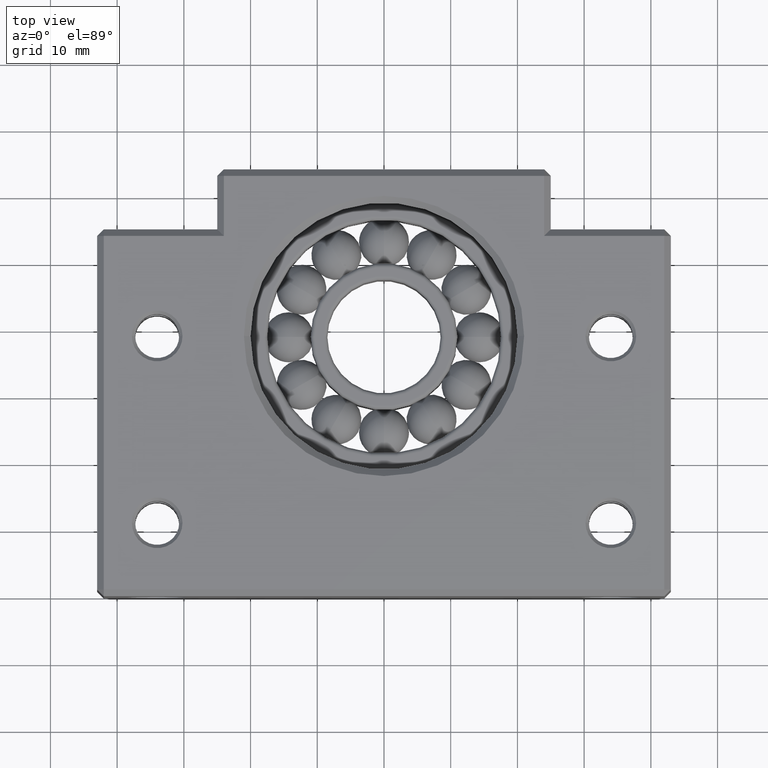
[diagram: clean part render]
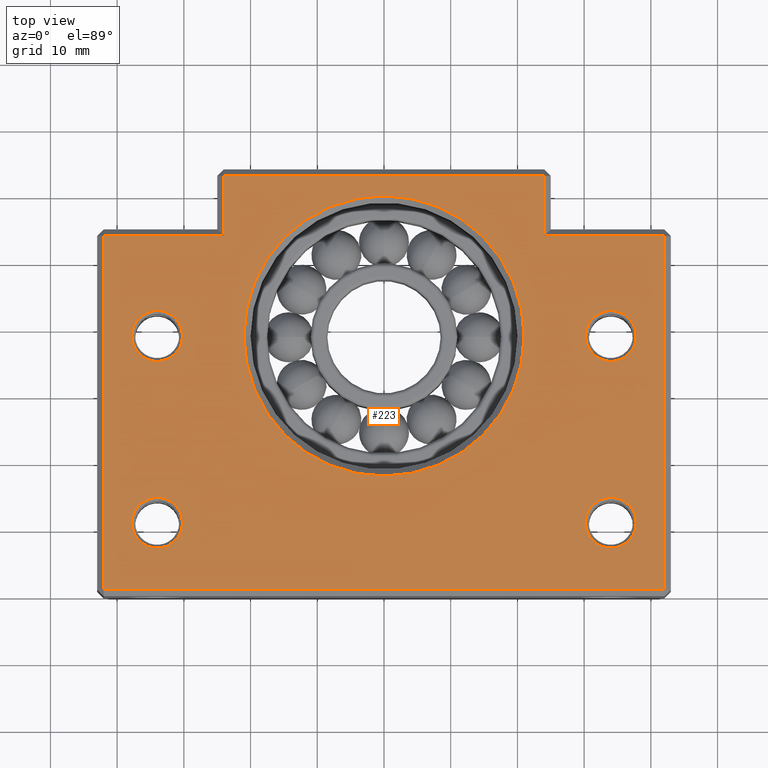
[diagram: same view with one face highlighted and labeled with its STEP entity id]
A machine part, top view. The second image highlights one B-rep face of the part: STEP entity #223.
In plain terms, the highlighted planar face has unit normal (-0, 0, 1).
Its self-contained STEP definition (entity closure, byte-faithful):
#1 = DIRECTION ( 'NONE',  ( -1.000000000000000000, 0.0000000000000000000, -0.0000000000000000000 ) ) ;
#8 = ORIENTED_EDGE ( 'NONE', *, *, #260, .T. ) ;
#223 = ADVANCED_FACE ( 'NONE', ( #906, #976, #975, #974, #973, #972 ), #908, .T. ) ;
#224 = EDGE_LOOP ( 'NONE', ( #225, #226 ) ) ;
#225 = ORIENTED_EDGE ( 'NONE', *, *, #3623, .T. ) ;
#226 = ORIENTED_EDGE ( 'NONE', *, *, #227, .T. ) ;
#227 = EDGE_CURVE ( 'NONE', #3624, #3503, #951, .T. ) ;
#228 = EDGE_LOOP ( 'NONE', ( #229, #288 ) ) ;
#229 = ORIENTED_EDGE ( 'NONE', *, *, #3708, .T. ) ;
#260 = EDGE_CURVE ( 'NONE', #286, #287, #1080, .T. ) ;
#261 = ORIENTED_EDGE ( 'NONE', *, *, #262, .T. ) ;
#262 = EDGE_CURVE ( 'NONE', #287, #263, #1114, .T. ) ;
#263 = VERTEX_POINT ( 'NONE', #1110 ) ;
#264 = ORIENTED_EDGE ( 'NONE', *, *, #265, .T. ) ;
#265 = EDGE_CURVE ( 'NONE', #263, #266, #1109, .T. ) ;
#266 = VERTEX_POINT ( 'NONE', #1105 ) ;
#267 = ORIENTED_EDGE ( 'NONE', *, *, #268, .T. ) ;
#268 = EDGE_CURVE ( 'NONE', #266, #276, #1104, .T. ) ;
#272 = ORIENTED_EDGE ( 'NONE', *, *, #273, .T. ) ;
#273 = EDGE_CURVE ( 'NONE', #4615, #4634, #1088, .T. ) ;
#274 = ORIENTED_EDGE ( 'NONE', *, *, #275, .T. ) ;
#275 = EDGE_CURVE ( 'NONE', #276, #277, #1083, .T. ) ;
#276 = VERTEX_POINT ( 'NONE', #1148 ) ;
#277 = VERTEX_POINT ( 'NONE', #1147 ) ;
#278 = ORIENTED_EDGE ( 'NONE', *, *, #279, .T. ) ;
#279 = EDGE_CURVE ( 'NONE', #277, #280, #1146, .T. ) ;
#280 = VERTEX_POINT ( 'NONE', #1142 ) ;
#281 = ORIENTED_EDGE ( 'NONE', *, *, #282, .T. ) ;
#282 = EDGE_CURVE ( 'NONE', #280, #283, #1141, .T. ) ;
#283 = VERTEX_POINT ( 'NONE', #1137 ) ;
#284 = ORIENTED_EDGE ( 'NONE', *, *, #285, .T. ) ;
#285 = EDGE_CURVE ( 'NONE', #283, #286, #1136, .T. ) ;
#286 = VERTEX_POINT ( 'NONE', #1132 ) ;
#287 = VERTEX_POINT ( 'NONE', #1131 ) ;
#288 = ORIENTED_EDGE ( 'NONE', *, *, #289, .T. ) ;
#289 = EDGE_CURVE ( 'NONE', #2316, #2401, #1130, .T. ) ;
#290 = EDGE_LOOP ( 'NONE', ( #291, #292 ) ) ;
#291 = ORIENTED_EDGE ( 'NONE', *, *, #4802, .T. ) ;
#292 = ORIENTED_EDGE ( 'NONE', *, *, #293, .T. ) ;
#293 = EDGE_CURVE ( 'NONE', #2471, #4794, #1125, .T. ) ;
#294 = EDGE_LOOP ( 'NONE', ( #295, #297 ) ) ;
#295 = ORIENTED_EDGE ( 'NONE', *, *, #3163, .T. ) ;
#297 = ORIENTED_EDGE ( 'NONE', *, *, #298, .T. ) ;
#298 = EDGE_CURVE ( 'NONE', #3364, #2997, #1119, .T. ) ;
#299 = EDGE_LOOP ( 'NONE', ( #300, #272 ) ) ;
#300 = ORIENTED_EDGE ( 'NONE', *, *, #4628, .T. ) ;
#301 = EDGE_LOOP ( 'NONE', ( #274, #278, #281, #284, #8, #261, #264, #267 ) ) ;
#809 = VECTOR ( 'NONE', #1, 1000.000000000000000 ) ;
#810 = CARTESIAN_POINT ( 'NONE',  ( -24.99999999999998900, 63.00000000000001400, 11.50000000000000000 ) ) ;
#906 = FACE_BOUND ( 'NONE', #224, .T. ) ;
#908 = PLANE ( 'NONE',  #971 ) ;
#944 = DIRECTION ( 'NONE',  ( 1.000000000000000000, 0.0000000000000000000, 0.0000000000000000000 ) ) ;
#945 = DIRECTION ( 'NONE',  ( 0.0000000000000000000, -0.0000000000000000000, -1.000000000000000000 ) ) ;
#946 = CARTESIAN_POINT ( 'NONE',  ( 34.00000000000001400, 11.00000000000001400, 11.50000000000000000 ) ) ;
#947 = AXIS2_PLACEMENT_3D ( 'NONE', #946, #945, #944 ) ;
#948 = DIRECTION ( 'NONE',  ( 1.000000000000000000, 0.0000000000000000000, 0.0000000000000000000 ) ) ;
#949 = DIRECTION ( 'NONE',  ( -0.0000000000000000000, 0.0000000000000000000, 1.000000000000000000 ) ) ;
#950 = CARTESIAN_POINT ( 'NONE',  ( -42.99999999999998600, 0.0000000000000000000, 11.50000000000000000 ) ) ;
#951 = CIRCLE ( 'NONE', #947, 3.799999999999983800 ) ;
#971 = AXIS2_PLACEMENT_3D ( 'NONE', #950, #949, #948 ) ;
#972 = FACE_OUTER_BOUND ( 'NONE', #301, .T. ) ;
#973 = FACE_BOUND ( 'NONE', #299, .T. ) ;
#974 = FACE_BOUND ( 'NONE', #294, .T. ) ;
#975 = FACE_BOUND ( 'NONE', #290, .T. ) ;
#976 = FACE_BOUND ( 'NONE', #228, .T. ) ;
#1059 = DIRECTION ( 'NONE',  ( 1.000000000000000000, 1.224646799147353200E-016, 0.0000000000000000000 ) ) ;
#1060 = VECTOR ( 'NONE', #1059, 1000.000000000000000 ) ;
#1061 = CARTESIAN_POINT ( 'NONE',  ( 43.00000000000000700, 0.9999999999999976700, 11.50000000000000000 ) ) ;
#1080 = LINE ( 'NONE', #1061, #1060 ) ;
#1083 = LINE ( 'NONE', #810, #809 ) ;
#1085 = DIRECTION ( 'NONE',  ( 1.000000000000000000, 0.0000000000000000000, 0.0000000000000000000 ) ) ;
#1086 = DIRECTION ( 'NONE',  ( 0.0000000000000000000, -0.0000000000000000000, -1.000000000000000000 ) ) ;
#1087 = AXIS2_PLACEMENT_3D ( 'NONE', #1092, #1086, #1085 ) ;
#1088 = CIRCLE ( 'NONE', #1087, 21.00000000000000400 ) ;
#1092 = CARTESIAN_POINT ( 'NONE',  ( 1.234791104884921900E-014, 39.00000000000000700, 11.50000000000000000 ) ) ;
#1101 = DIRECTION ( 'NONE',  ( 0.0000000000000000000, 1.000000000000000000, 0.0000000000000000000 ) ) ;
#1102 = VECTOR ( 'NONE', #1101, 1000.000000000000000 ) ;
#1103 = CARTESIAN_POINT ( 'NONE',  ( 24.00000000000002100, 64.00000000000000000, 11.50000000000000000 ) ) ;
#1104 = LINE ( 'NONE', #1103, #1102 ) ;
#1105 = CARTESIAN_POINT ( 'NONE',  ( 24.00000000000002100, 54.00000000000002800, 11.50000000000000000 ) ) ;
#1106 = DIRECTION ( 'NONE',  ( -1.000000000000000000, 0.0000000000000000000, -0.0000000000000000000 ) ) ;
#1107 = VECTOR ( 'NONE', #1106, 1000.000000000000000 ) ;
#1108 = CARTESIAN_POINT ( 'NONE',  ( 25.00000000000001100, 54.00000000000002800, 11.50000000000000000 ) ) ;
#1109 = LINE ( 'NONE', #1108, #1107 ) ;
#1110 = CARTESIAN_POINT ( 'NONE',  ( 42.00000000000003600, 54.00000000000002800, 11.50000000000000000 ) ) ;
#1111 = DIRECTION ( 'NONE',  ( 2.523234146875356000E-016, 1.000000000000000000, 0.0000000000000000000 ) ) ;
#1112 = VECTOR ( 'NONE', #1111, 1000.000000000000000 ) ;
#1113 = CARTESIAN_POINT ( 'NONE',  ( 42.00000000000003600, 55.00000000000001400, 11.50000000000000000 ) ) ;
#1114 = LINE ( 'NONE', #1113, #1112 ) ;
#1118 = CARTESIAN_POINT ( 'NONE',  ( -34.00000000000000000, 39.00000000000000700, 11.50000000000000000 ) ) ;
#1119 = CIRCLE ( 'NONE', #1181, 3.799999999999983800 ) ;
#1121 = DIRECTION ( 'NONE',  ( 1.000000000000000000, 0.0000000000000000000, 0.0000000000000000000 ) ) ;
#1122 = DIRECTION ( 'NONE',  ( 0.0000000000000000000, -0.0000000000000000000, -1.000000000000000000 ) ) ;
#1123 = CARTESIAN_POINT ( 'NONE',  ( -34.00000000000000000, 11.00000000000000700, 11.50000000000000000 ) ) ;
#1124 = AXIS2_PLACEMENT_3D ( 'NONE', #1123, #1122, #1121 ) ;
#1125 = CIRCLE ( 'NONE', #1124, 3.799999999999983800 ) ;
#1126 = DIRECTION ( 'NONE',  ( 1.000000000000000000, 0.0000000000000000000, 0.0000000000000000000 ) ) ;
#1127 = DIRECTION ( 'NONE',  ( 0.0000000000000000000, -0.0000000000000000000, -1.000000000000000000 ) ) ;
#1128 = CARTESIAN_POINT ( 'NONE',  ( 34.00000000000000000, 39.00000000000001400, 11.50000000000000000 ) ) ;
#1129 = AXIS2_PLACEMENT_3D ( 'NONE', #1128, #1127, #1126 ) ;
#1130 = CIRCLE ( 'NONE', #1129, 3.799999999999983800 ) ;
#1131 = CARTESIAN_POINT ( 'NONE',  ( 42.00000000000002100, 0.9999999999999974500, 11.50000000000000000 ) ) ;
#1132 = CARTESIAN_POINT ( 'NONE',  ( -41.99999999999999300, 0.9999999999999872300, 11.50000000000000000 ) ) ;
#1133 = DIRECTION ( 'NONE',  ( 5.046468293750712000E-016, -1.000000000000000000, 0.0000000000000000000 ) ) ;
#1134 = VECTOR ( 'NONE', #1133, 1000.000000000000000 ) ;
#1135 = CARTESIAN_POINT ( 'NONE',  ( -41.99999999999999300, 5.046468293750646900E-016, 11.50000000000000000 ) ) ;
#1136 = LINE ( 'NONE', #1135, #1134 ) ;
#1137 = CARTESIAN_POINT ( 'NONE',  ( -42.00000000000002100, 54.00000000000001400, 11.50000000000000000 ) ) ;
#1138 = DIRECTION ( 'NONE',  ( -1.000000000000000000, -3.854941057726233700E-016, 0.0000000000000000000 ) ) ;
#1139 = VECTOR ( 'NONE', #1138, 1000.000000000000000 ) ;
#1140 = CARTESIAN_POINT ( 'NONE',  ( -43.00000000000000700, 54.00000000000001400, 11.50000000000000000 ) ) ;
#1141 = LINE ( 'NONE', #1140, #1139 ) ;
#1142 = CARTESIAN_POINT ( 'NONE',  ( -23.99999999999998900, 54.00000000000002100, 11.50000000000000000 ) ) ;
#1143 = DIRECTION ( 'NONE',  ( 0.0000000000000000000, -1.000000000000000000, 0.0000000000000000000 ) ) ;
#1144 = VECTOR ( 'NONE', #1143, 1000.000000000000000 ) ;
#1145 = CARTESIAN_POINT ( 'NONE',  ( -23.99999999999998900, 55.00000000000000700, 11.50000000000000000 ) ) ;
#1146 = LINE ( 'NONE', #1145, #1144 ) ;
#1147 = CARTESIAN_POINT ( 'NONE',  ( -23.99999999999998900, 63.00000000000001400, 11.50000000000000000 ) ) ;
#1148 = CARTESIAN_POINT ( 'NONE',  ( 24.00000000000002100, 63.00000000000001400, 11.50000000000000000 ) ) ;
#1179 = DIRECTION ( 'NONE',  ( 1.000000000000000000, 0.0000000000000000000, 0.0000000000000000000 ) ) ;
#1180 = DIRECTION ( 'NONE',  ( 0.0000000000000000000, -0.0000000000000000000, -1.000000000000000000 ) ) ;
#1181 = AXIS2_PLACEMENT_3D ( 'NONE', #1118, #1180, #1179 ) ;
#1223 = CARTESIAN_POINT ( 'NONE',  ( -37.79999999999998300, 11.00000000000000700, 11.50000000000000000 ) ) ;
#1224 = CARTESIAN_POINT ( 'NONE',  ( 37.79999999999998300, 39.00000000000001400, 11.50000000000000000 ) ) ;
#1225 = CARTESIAN_POINT ( 'NONE',  ( 30.20000000000001700, 39.00000000000001400, 11.50000000000000000 ) ) ;
#1259 = CARTESIAN_POINT ( 'NONE',  ( -30.20000000000001700, 39.00000000000000700, 11.50000000000000000 ) ) ;
#1298 = CARTESIAN_POINT ( 'NONE',  ( -37.79999999999998300, 39.00000000000000700, 11.50000000000000000 ) ) ;
#1310 = DIRECTION ( 'NONE',  ( 1.000000000000000000, 0.0000000000000000000, 0.0000000000000000000 ) ) ;
#1311 = DIRECTION ( 'NONE',  ( 0.0000000000000000000, -0.0000000000000000000, -1.000000000000000000 ) ) ;
#1312 = CARTESIAN_POINT ( 'NONE',  ( -34.00000000000000000, 39.00000000000000700, 11.50000000000000000 ) ) ;
#1313 = AXIS2_PLACEMENT_3D ( 'NONE', #1312, #1311, #1310 ) ;
#1314 = CIRCLE ( 'NONE', #1313, 3.799999999999983800 ) ;
#1346 = CARTESIAN_POINT ( 'NONE',  ( 37.79999999999999700, 11.00000000000001400, 11.50000000000000000 ) ) ;
#1384 = DIRECTION ( 'NONE',  ( 1.000000000000000000, 0.0000000000000000000, 0.0000000000000000000 ) ) ;
#1385 = DIRECTION ( 'NONE',  ( 0.0000000000000000000, -0.0000000000000000000, -1.000000000000000000 ) ) ;
#1386 = CARTESIAN_POINT ( 'NONE',  ( 34.00000000000001400, 11.00000000000001400, 11.50000000000000000 ) ) ;
#1387 = AXIS2_PLACEMENT_3D ( 'NONE', #1386, #1385, #1384 ) ;
#1388 = CIRCLE ( 'NONE', #1387, 3.799999999999983800 ) ;
#1389 = CARTESIAN_POINT ( 'NONE',  ( 30.20000000000003100, 11.00000000000001400, 11.50000000000000000 ) ) ;
#1556 = DIRECTION ( 'NONE',  ( 1.000000000000000000, 0.0000000000000000000, 0.0000000000000000000 ) ) ;
#1557 = DIRECTION ( 'NONE',  ( 0.0000000000000000000, -0.0000000000000000000, -1.000000000000000000 ) ) ;
#1558 = CARTESIAN_POINT ( 'NONE',  ( 34.00000000000000000, 39.00000000000001400, 11.50000000000000000 ) ) ;
#1559 = AXIS2_PLACEMENT_3D ( 'NONE', #1558, #1557, #1556 ) ;
#1565 = CIRCLE ( 'NONE', #1559, 3.799999999999983800 ) ;
#2316 = VERTEX_POINT ( 'NONE', #1225 ) ;
#2401 = VERTEX_POINT ( 'NONE', #1224 ) ;
#2471 = VERTEX_POINT ( 'NONE', #1223 ) ;
#2997 = VERTEX_POINT ( 'NONE', #1259 ) ;
#3163 = EDGE_CURVE ( 'NONE', #2997, #3364, #1314, .T. ) ;
#3175 = CARTESIAN_POINT ( 'NONE',  ( -20.99999999999998900, 39.00000000000000700, 11.50000000000000000 ) ) ;
#3197 = CARTESIAN_POINT ( 'NONE',  ( 21.00000000000001800, 39.00000000000000700, 11.50000000000000000 ) ) ;
#3208 = DIRECTION ( 'NONE',  ( 1.000000000000000000, 0.0000000000000000000, 0.0000000000000000000 ) ) ;
#3209 = DIRECTION ( 'NONE',  ( 0.0000000000000000000, -0.0000000000000000000, -1.000000000000000000 ) ) ;
#3210 = AXIS2_PLACEMENT_3D ( 'NONE', #3215, #3209, #3208 ) ;
#3211 = CIRCLE ( 'NONE', #3210, 21.00000000000000400 ) ;
#3215 = CARTESIAN_POINT ( 'NONE',  ( 1.234791104884921900E-014, 39.00000000000000700, 11.50000000000000000 ) ) ;
#3364 = VERTEX_POINT ( 'NONE', #1298 ) ;
#3461 = CARTESIAN_POINT ( 'NONE',  ( -30.20000000000001700, 11.00000000000000700, 11.50000000000000000 ) ) ;
#3493 = DIRECTION ( 'NONE',  ( 1.000000000000000000, 0.0000000000000000000, 0.0000000000000000000 ) ) ;
#3494 = DIRECTION ( 'NONE',  ( 0.0000000000000000000, -0.0000000000000000000, -1.000000000000000000 ) ) ;
#3495 = CARTESIAN_POINT ( 'NONE',  ( -34.00000000000000000, 11.00000000000000700, 11.50000000000000000 ) ) ;
#3496 = AXIS2_PLACEMENT_3D ( 'NONE', #3495, #3494, #3493 ) ;
#3497 = CIRCLE ( 'NONE', #3496, 3.799999999999983800 ) ;
#3503 = VERTEX_POINT ( 'NONE', #1346 ) ;
#3623 = EDGE_CURVE ( 'NONE', #3503, #3624, #1388, .T. ) ;
#3624 = VERTEX_POINT ( 'NONE', #1389 ) ;
#3708 = EDGE_CURVE ( 'NONE', #2401, #2316, #1565, .T. ) ;
#4615 = VERTEX_POINT ( 'NONE', #3175 ) ;
#4628 = EDGE_CURVE ( 'NONE', #4634, #4615, #3211, .T. ) ;
#4634 = VERTEX_POINT ( 'NONE', #3197 ) ;
#4794 = VERTEX_POINT ( 'NONE', #3461 ) ;
#4802 = EDGE_CURVE ( 'NONE', #4794, #2471, #3497, .T. ) ;